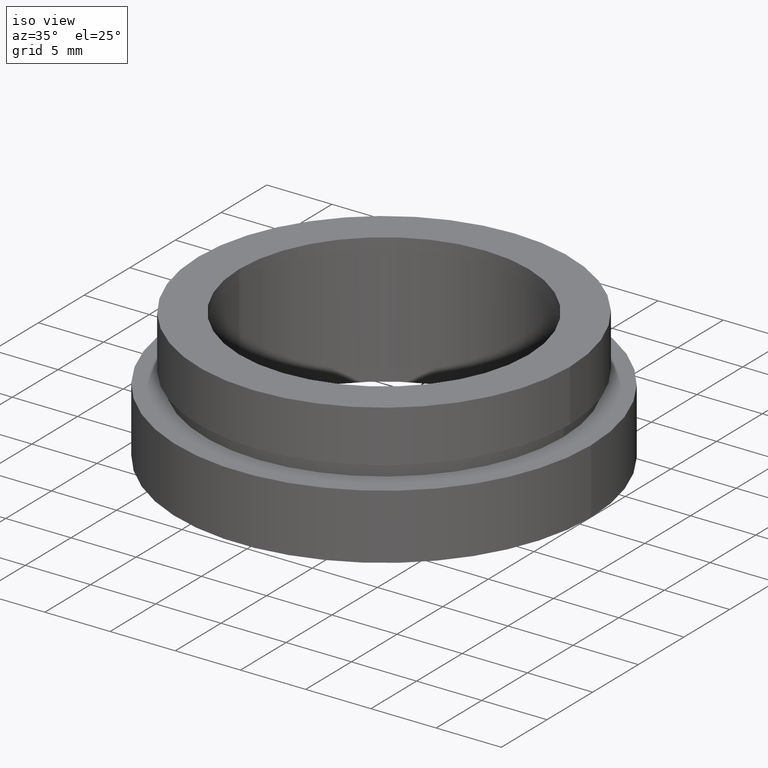
[diagram: clean part render]
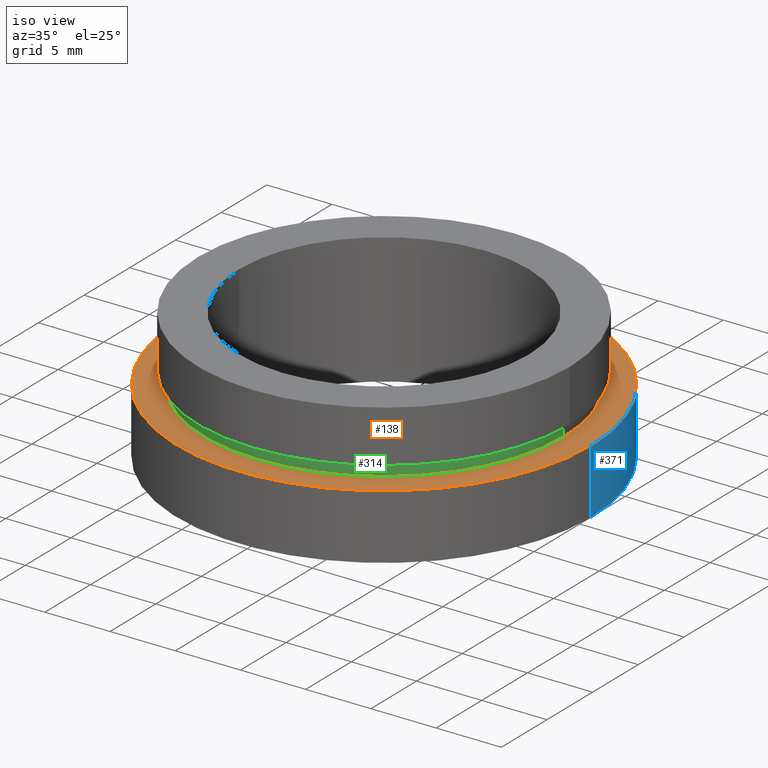
[diagram: same view with three faces highlighted in distinct colors, each labeled with its STEP entity id]
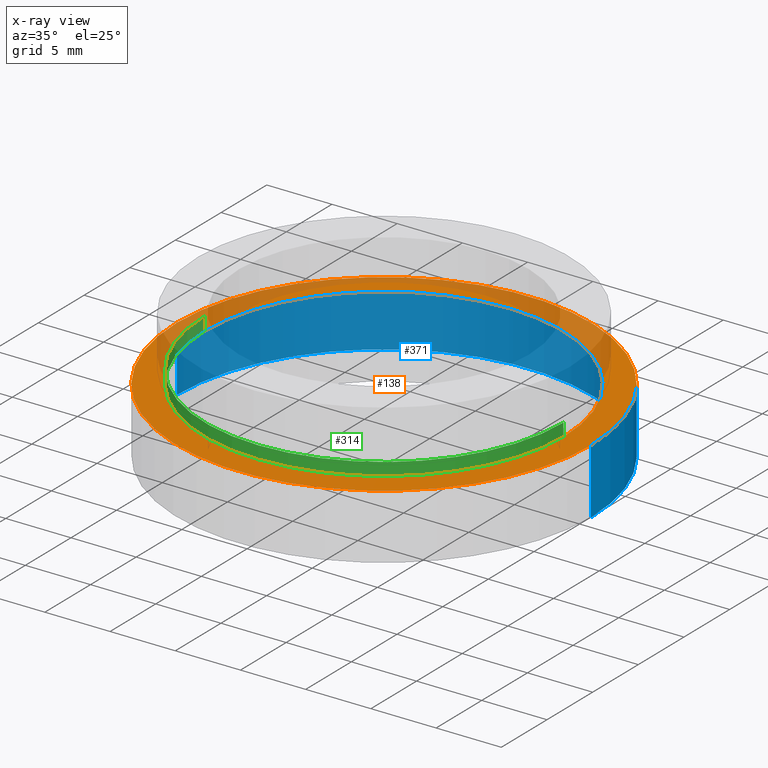
[diagram: x-ray of the same camera — body ghosted, the three highlighted faces saturated]
A machine part, iso view with three faces highlighted in distinct colors.
The next image is the same camera in x-ray (body ghosted, the three faces saturated) — at least one of them is partly hidden behind the body in this view.
Their STEP definitions:

[orange] entity #138 — the highlighted planar face has unit normal (-0, 0, -1).
#9 = CARTESIAN_POINT ( 'NONE',  ( 13.75000000000000400, 0.0000000000000000000, -5.000000000000000000 ) ) ;
#15 = AXIS2_PLACEMENT_3D ( 'NONE', #247, #76, #80 ) ;
#20 = CIRCLE ( 'NONE', #380, 15.87500000000000000 ) ;
#27 = CIRCLE ( 'NONE', #38, 13.75000000000000400 ) ;
#29 = EDGE_CURVE ( 'NONE', #187, #75, #20, .T. ) ;
#32 = DIRECTION ( 'NONE',  ( -0.0000000000000000000, -0.0000000000000000000, -1.000000000000000000 ) ) ;
#38 = AXIS2_PLACEMENT_3D ( 'NONE', #166, #99, #184 ) ;
#61 = ORIENTED_EDGE ( 'NONE', *, *, #191, .T. ) ;
#69 = ORIENTED_EDGE ( 'NONE', *, *, #292, .T. ) ;
#75 = VERTEX_POINT ( 'NONE', #307 ) ;
#76 = DIRECTION ( 'NONE',  ( -0.0000000000000000000, -0.0000000000000000000, -1.000000000000000000 ) ) ;
#80 = DIRECTION ( 'NONE',  ( -1.000000000000000000, 0.0000000000000000000, 0.0000000000000000000 ) ) ;
#83 = PLANE ( 'NONE',  #319 ) ;
#95 = VERTEX_POINT ( 'NONE', #365 ) ;
#99 = DIRECTION ( 'NONE',  ( -0.0000000000000000000, -0.0000000000000000000, -1.000000000000000000 ) ) ;
#138 = ADVANCED_FACE ( 'NONE', ( #179, #331 ), #83, .F. ) ;
#151 = ORIENTED_EDGE ( 'NONE', *, *, #29, .F. ) ;
#159 = EDGE_LOOP ( 'NONE', ( #173, #151 ) ) ;
#166 = CARTESIAN_POINT ( 'NONE',  ( 0.0000000000000000000, 0.0000000000000000000, -5.000000000000000900 ) ) ;
#173 = ORIENTED_EDGE ( 'NONE', *, *, #349, .F. ) ;
#179 = FACE_OUTER_BOUND ( 'NONE', #159, .T. ) ;
#184 = DIRECTION ( 'NONE',  ( -1.000000000000000000, 0.0000000000000000000, 0.0000000000000000000 ) ) ;
#187 = VERTEX_POINT ( 'NONE', #258 ) ;
#191 = EDGE_CURVE ( 'NONE', #95, #423, #27, .T. ) ;
#215 = EDGE_LOOP ( 'NONE', ( #61, #69 ) ) ;
#224 = DIRECTION ( 'NONE',  ( -0.0000000000000000000, 0.0000000000000000000, -1.000000000000000000 ) ) ;
#247 = CARTESIAN_POINT ( 'NONE',  ( 0.0000000000000000000, 0.0000000000000000000, -5.000000000000000900 ) ) ;
#258 = CARTESIAN_POINT ( 'NONE',  ( 15.87500000000000000, 1.944126793646423200E-015, -5.000000000000000900 ) ) ;
#281 = AXIS2_PLACEMENT_3D ( 'NONE', #282, #426, #351 ) ;
#282 = CARTESIAN_POINT ( 'NONE',  ( 0.0000000000000000000, 0.0000000000000000000, -5.000000000000000900 ) ) ;
#292 = EDGE_CURVE ( 'NONE', #423, #95, #407, .T. ) ;
#307 = CARTESIAN_POINT ( 'NONE',  ( -15.87500000000000000, 0.0000000000000000000, -5.000000000000000900 ) ) ;
#319 = AXIS2_PLACEMENT_3D ( 'NONE', #9, #224, #405 ) ;
#331 = FACE_BOUND ( 'NONE', #215, .T. ) ;
#338 = CIRCLE ( 'NONE', #15, 15.87500000000000000 ) ;
#349 = EDGE_CURVE ( 'NONE', #75, #187, #338, .T. ) ;
#351 = DIRECTION ( 'NONE',  ( -1.000000000000000000, 0.0000000000000000000, 0.0000000000000000000 ) ) ;
#365 = CARTESIAN_POINT ( 'NONE',  ( -13.75000000000000400, 0.0000000000000000000, -5.000000000000000900 ) ) ;
#380 = AXIS2_PLACEMENT_3D ( 'NONE', #410, #32, #421 ) ;
#405 = DIRECTION ( 'NONE',  ( -1.000000000000000000, 0.0000000000000000000, 0.0000000000000000000 ) ) ;
#407 = CIRCLE ( 'NONE', #281, 13.75000000000000400 ) ;
#410 = CARTESIAN_POINT ( 'NONE',  ( 0.0000000000000000000, 0.0000000000000000000, -5.000000000000000900 ) ) ;
#413 = CARTESIAN_POINT ( 'NONE',  ( 13.75000000000000400, 1.683889348827611200E-015, -5.000000000000000900 ) ) ;
#421 = DIRECTION ( 'NONE',  ( -1.000000000000000000, 0.0000000000000000000, 0.0000000000000000000 ) ) ;
#423 = VERTEX_POINT ( 'NONE', #413 ) ;
#426 = DIRECTION ( 'NONE',  ( -0.0000000000000000000, -0.0000000000000000000, -1.000000000000000000 ) ) ;

[blue] entity #371 — the highlighted cylindrical surface (partial cylindrical patch) has radius 15.875 mm, axis along (-0, -0, -1).
#15 = AXIS2_PLACEMENT_3D ( 'NONE', #247, #76, #80 ) ;
#19 = EDGE_CURVE ( 'NONE', #187, #50, #142, .T. ) ;
#35 = DIRECTION ( 'NONE',  ( -0.0000000000000000000, -0.0000000000000000000, -1.000000000000000000 ) ) ;
#50 = VERTEX_POINT ( 'NONE', #352 ) ;
#75 = VERTEX_POINT ( 'NONE', #307 ) ;
#76 = DIRECTION ( 'NONE',  ( -0.0000000000000000000, -0.0000000000000000000, -1.000000000000000000 ) ) ;
#78 = VECTOR ( 'NONE', #289, 1000.000000000000000 ) ;
#80 = DIRECTION ( 'NONE',  ( -1.000000000000000000, 0.0000000000000000000, 0.0000000000000000000 ) ) ;
#87 = CARTESIAN_POINT ( 'NONE',  ( 0.0000000000000000000, 0.0000000000000000000, -19.14057971014493000 ) ) ;
#101 = ORIENTED_EDGE ( 'NONE', *, *, #349, .T. ) ;
#142 = LINE ( 'NONE', #157, #78 ) ;
#157 = CARTESIAN_POINT ( 'NONE',  ( 15.87500000000000000, 1.944126793646423200E-015, -19.14057971014493000 ) ) ;
#158 = CIRCLE ( 'NONE', #409, 15.87500000000000000 ) ;
#187 = VERTEX_POINT ( 'NONE', #258 ) ;
#213 = CARTESIAN_POINT ( 'NONE',  ( -15.87500000000000000, 0.0000000000000000000, -10.00000000000000000 ) ) ;
#223 = CARTESIAN_POINT ( 'NONE',  ( 0.0000000000000000000, 0.0000000000000000000, -10.00000000000000000 ) ) ;
#238 = EDGE_CURVE ( 'NONE', #75, #286, #291, .T. ) ;
#247 = CARTESIAN_POINT ( 'NONE',  ( 0.0000000000000000000, 0.0000000000000000000, -5.000000000000000900 ) ) ;
#258 = CARTESIAN_POINT ( 'NONE',  ( 15.87500000000000000, 1.944126793646423200E-015, -5.000000000000000900 ) ) ;
#263 = ORIENTED_EDGE ( 'NONE', *, *, #19, .T. ) ;
#271 = EDGE_LOOP ( 'NONE', ( #101, #263, #298, #354 ) ) ;
#273 = DIRECTION ( 'NONE',  ( -1.000000000000000000, 0.0000000000000000000, 0.0000000000000000000 ) ) ;
#283 = DIRECTION ( 'NONE',  ( -0.0000000000000000000, -0.0000000000000000000, -1.000000000000000000 ) ) ;
#285 = AXIS2_PLACEMENT_3D ( 'NONE', #87, #283, #339 ) ;
#286 = VERTEX_POINT ( 'NONE', #213 ) ;
#289 = DIRECTION ( 'NONE',  ( -0.0000000000000000000, -0.0000000000000000000, -1.000000000000000000 ) ) ;
#291 = LINE ( 'NONE', #345, #337 ) ;
#298 = ORIENTED_EDGE ( 'NONE', *, *, #322, .F. ) ;
#307 = CARTESIAN_POINT ( 'NONE',  ( -15.87500000000000000, 0.0000000000000000000, -5.000000000000000900 ) ) ;
#321 = FACE_OUTER_BOUND ( 'NONE', #271, .T. ) ;
#322 = EDGE_CURVE ( 'NONE', #286, #50, #158, .T. ) ;
#335 = DIRECTION ( 'NONE',  ( -0.0000000000000000000, -0.0000000000000000000, -1.000000000000000000 ) ) ;
#337 = VECTOR ( 'NONE', #335, 1000.000000000000000 ) ;
#338 = CIRCLE ( 'NONE', #15, 15.87500000000000000 ) ;
#339 = DIRECTION ( 'NONE',  ( -1.000000000000000000, 0.0000000000000000000, 0.0000000000000000000 ) ) ;
#345 = CARTESIAN_POINT ( 'NONE',  ( -15.87500000000000000, 0.0000000000000000000, -19.14057971014493000 ) ) ;
#349 = EDGE_CURVE ( 'NONE', #75, #187, #338, .T. ) ;
#352 = CARTESIAN_POINT ( 'NONE',  ( 15.87500000000000000, 1.944126793646423200E-015, -10.00000000000000000 ) ) ;
#354 = ORIENTED_EDGE ( 'NONE', *, *, #238, .F. ) ;
#371 = ADVANCED_FACE ( 'NONE', ( #321 ), #418, .T. ) ;
#409 = AXIS2_PLACEMENT_3D ( 'NONE', #223, #35, #273 ) ;
#418 = CYLINDRICAL_SURFACE ( 'NONE', #285, 15.87500000000000000 ) ;

[green] entity #314 — the highlighted cylindrical surface (partial cylindrical patch) has radius 13.75 mm, axis along (-0, -0, -1).
#26 = AXIS2_PLACEMENT_3D ( 'NONE', #414, #55, #387 ) ;
#45 = ORIENTED_EDGE ( 'NONE', *, *, #248, .T. ) ;
#55 = DIRECTION ( 'NONE',  ( -0.0000000000000000000, -0.0000000000000000000, -1.000000000000000000 ) ) ;
#68 = LINE ( 'NONE', #242, #125 ) ;
#70 = EDGE_CURVE ( 'NONE', #171, #423, #382, .T. ) ;
#93 = CYLINDRICAL_SURFACE ( 'NONE', #26, 13.75000000000000400 ) ;
#94 = VECTOR ( 'NONE', #165, 1000.000000000000000 ) ;
#95 = VERTEX_POINT ( 'NONE', #365 ) ;
#98 = EDGE_CURVE ( 'NONE', #119, #95, #68, .T. ) ;
#117 = CARTESIAN_POINT ( 'NONE',  ( 13.75000000000000400, 1.683889348827611200E-015, -4.000000000000000000 ) ) ;
#119 = VERTEX_POINT ( 'NONE', #383 ) ;
#125 = VECTOR ( 'NONE', #164, 1000.000000000000000 ) ;
#164 = DIRECTION ( 'NONE',  ( -0.0000000000000000000, -0.0000000000000000000, -1.000000000000000000 ) ) ;
#165 = DIRECTION ( 'NONE',  ( -0.0000000000000000000, -0.0000000000000000000, -1.000000000000000000 ) ) ;
#171 = VERTEX_POINT ( 'NONE', #117 ) ;
#214 = CIRCLE ( 'NONE', #359, 13.75000000000000400 ) ;
#236 = ORIENTED_EDGE ( 'NONE', *, *, #98, .T. ) ;
#239 = DIRECTION ( 'NONE',  ( -0.0000000000000000000, -0.0000000000000000000, -1.000000000000000000 ) ) ;
#242 = CARTESIAN_POINT ( 'NONE',  ( -13.75000000000000400, 0.0000000000000000000, -19.14057971014493000 ) ) ;
#248 = EDGE_CURVE ( 'NONE', #171, #119, #214, .T. ) ;
#281 = AXIS2_PLACEMENT_3D ( 'NONE', #282, #426, #351 ) ;
#282 = CARTESIAN_POINT ( 'NONE',  ( 0.0000000000000000000, 0.0000000000000000000, -5.000000000000000900 ) ) ;
#292 = EDGE_CURVE ( 'NONE', #423, #95, #407, .T. ) ;
#309 = DIRECTION ( 'NONE',  ( -1.000000000000000000, 0.0000000000000000000, 0.0000000000000000000 ) ) ;
#314 = ADVANCED_FACE ( 'NONE', ( #358 ), #93, .T. ) ;
#318 = ORIENTED_EDGE ( 'NONE', *, *, #292, .F. ) ;
#324 = EDGE_LOOP ( 'NONE', ( #412, #45, #236, #318 ) ) ;
#351 = DIRECTION ( 'NONE',  ( -1.000000000000000000, 0.0000000000000000000, 0.0000000000000000000 ) ) ;
#358 = FACE_OUTER_BOUND ( 'NONE', #324, .T. ) ;
#359 = AXIS2_PLACEMENT_3D ( 'NONE', #415, #239, #309 ) ;
#365 = CARTESIAN_POINT ( 'NONE',  ( -13.75000000000000400, 0.0000000000000000000, -5.000000000000000900 ) ) ;
#382 = LINE ( 'NONE', #397, #94 ) ;
#383 = CARTESIAN_POINT ( 'NONE',  ( -13.75000000000000400, 0.0000000000000000000, -4.000000000000000000 ) ) ;
#387 = DIRECTION ( 'NONE',  ( -1.000000000000000000, 0.0000000000000000000, 0.0000000000000000000 ) ) ;
#397 = CARTESIAN_POINT ( 'NONE',  ( 13.75000000000000400, 1.683889348827611200E-015, -19.14057971014493000 ) ) ;
#407 = CIRCLE ( 'NONE', #281, 13.75000000000000400 ) ;
#412 = ORIENTED_EDGE ( 'NONE', *, *, #70, .F. ) ;
#413 = CARTESIAN_POINT ( 'NONE',  ( 13.75000000000000400, 1.683889348827611200E-015, -5.000000000000000900 ) ) ;
#414 = CARTESIAN_POINT ( 'NONE',  ( 0.0000000000000000000, 0.0000000000000000000, -19.14057971014493000 ) ) ;
#415 = CARTESIAN_POINT ( 'NONE',  ( 0.0000000000000000000, 0.0000000000000000000, -4.000000000000000000 ) ) ;
#423 = VERTEX_POINT ( 'NONE', #413 ) ;
#426 = DIRECTION ( 'NONE',  ( -0.0000000000000000000, -0.0000000000000000000, -1.000000000000000000 ) ) ;